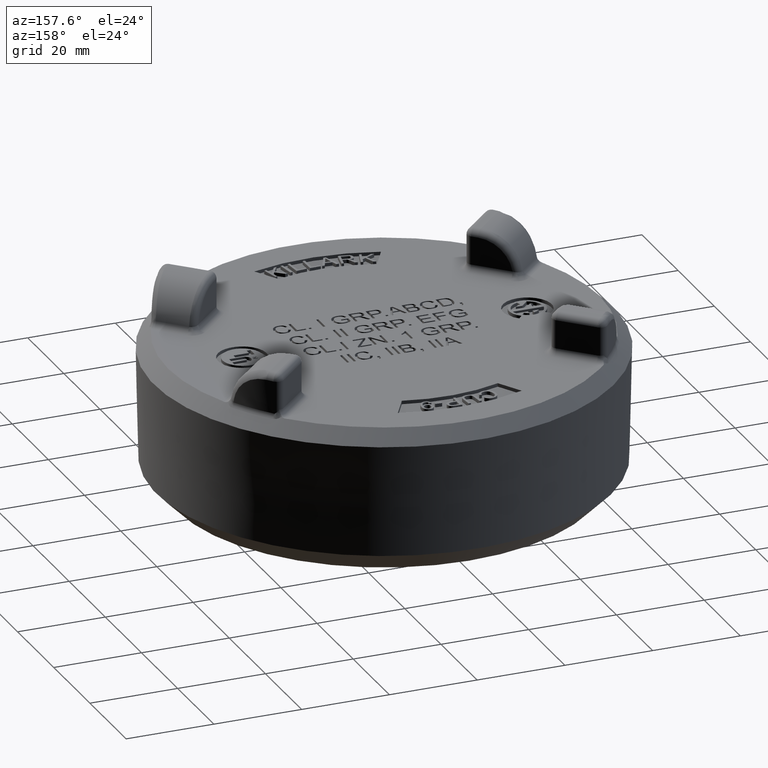
[diagram: clean part render]
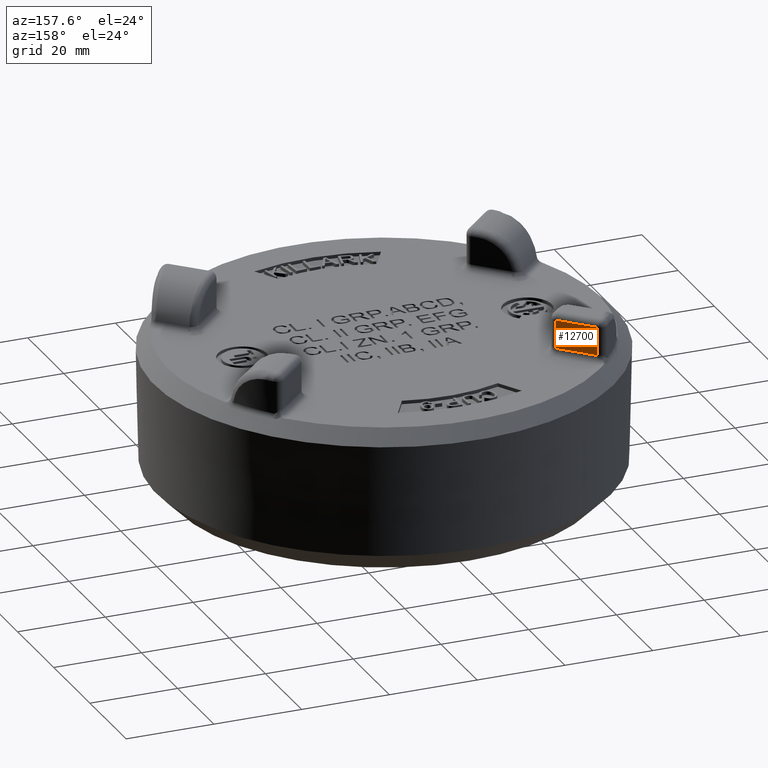
[diagram: same view with one face highlighted and labeled with its STEP entity id]
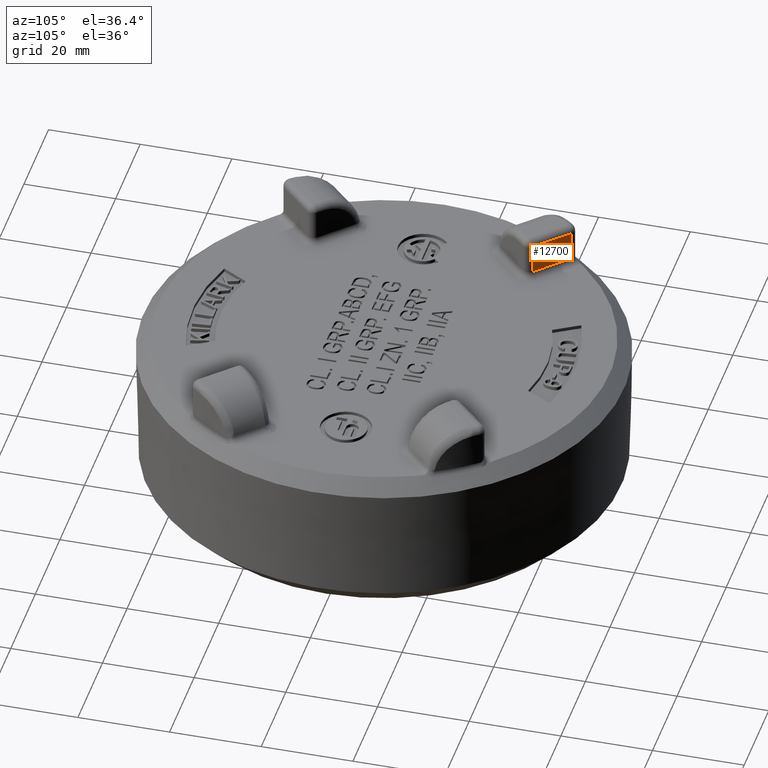
[diagram: same view with one face highlighted and labeled with its STEP entity id]
A machine part, auxiliary view. The second image highlights one B-rep face of the part: STEP entity #12700.
A second angle (auxiliary view) of the same face is appended — the face is thin or edge-on in the first view.
In plain terms, the highlighted planar face has unit normal (0.7071, 0.7071, -0).
Its self-contained STEP definition (entity closure, byte-faithful):
#1125=LINE('',#20863,#2490);
#1126=LINE('',#20865,#2491);
#1127=LINE('',#20867,#2492);
#1128=LINE('',#20868,#2493);
#2490=VECTOR('',#14841,6.47700000000001);
#2491=VECTOR('',#14842,9.52245281212513);
#2492=VECTOR('',#14843,6.47700000000001);
#2493=VECTOR('',#14844,9.52245281212513);
#3490=FACE_OUTER_BOUND('',#4325,.T.);
#4325=EDGE_LOOP('',(#9031,#9032,#9033,#9034));
#5825=VERTEX_POINT('',#20861);
#5826=VERTEX_POINT('',#20862);
#5827=VERTEX_POINT('',#20864);
#5828=VERTEX_POINT('',#20866);
#7088=EDGE_CURVE('',#5825,#5826,#1125,.T.);
#7089=EDGE_CURVE('',#5826,#5827,#1126,.F.);
#7090=EDGE_CURVE('',#5827,#5828,#1127,.F.);
#7091=EDGE_CURVE('',#5828,#5825,#1128,.T.);
#9031=ORIENTED_EDGE('',*,*,#7088,.T.);
#9032=ORIENTED_EDGE('',*,*,#7089,.T.);
#9033=ORIENTED_EDGE('',*,*,#7090,.T.);
#9034=ORIENTED_EDGE('',*,*,#7091,.T.);
#12186=PLANE('',#13550);
#12700=ADVANCED_FACE('',(#3490),#12186,.T.);
#13550=AXIS2_PLACEMENT_3D('',#20860,#14839,#14840);
#14839=DIRECTION('center_axis',(0.707106781186547,0.707106781186548,-2.22044604925031E-16));
#14840=DIRECTION('ref_axis',(0.707106781186548,-0.707106781186547,3.79120067792763E-32));
#14841=DIRECTION('',(-1.57009245868377E-16,-1.57009245868378E-16,-1.));
#14842=DIRECTION('',(0.707106781186548,-0.707106781186547,2.3318005277201E-16));
#14843=DIRECTION('',(-1.57009245868377E-16,-1.57009245868378E-16,-1.));
#14844=DIRECTION('',(0.707106781186548,-0.707106781186547,2.58881863470795E-32));
#20860=CARTESIAN_POINT('Origin',(-36.9710595613532,32.4809315008186,23.8353267122275));
#20861=CARTESIAN_POINT('',(-29.0684341748124,24.5783061142778,22.3113267122275));
#20862=CARTESIAN_POINT('',(-29.0684341748124,24.5783061142778,15.8343267122275));
#20863=CARTESIAN_POINT('',(-29.0684341748124,24.5783061142778,22.3113267122275));
#20864=CARTESIAN_POINT('',(-35.8018251317949,31.3116970712604,15.8343267122275));
#20865=CARTESIAN_POINT('',(-35.8018251317949,31.3116970712604,15.8343267122275));
#20866=CARTESIAN_POINT('',(-35.8018251317949,31.3116970712604,22.3113267122275));
#20867=CARTESIAN_POINT('',(-35.8018251317949,31.3116970712604,22.3113267122275));
#20868=CARTESIAN_POINT('',(-35.8018251317949,31.3116970712604,22.3113267122275));